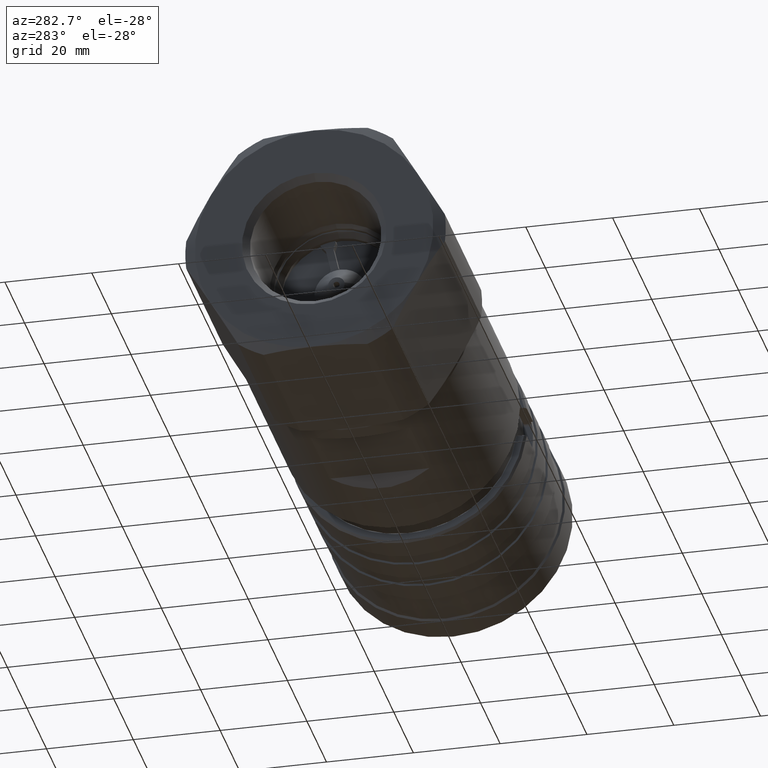
[diagram: clean part render]
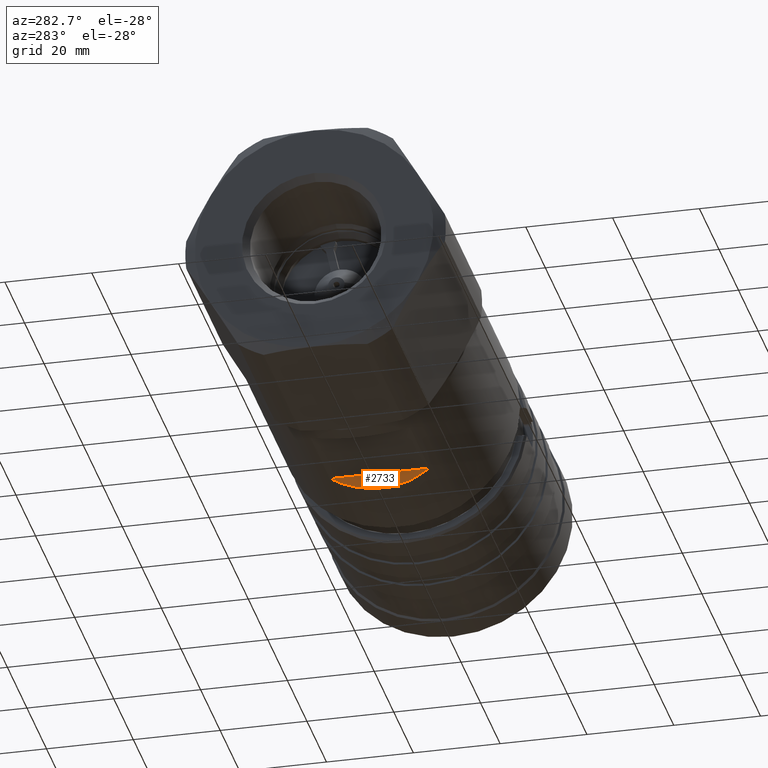
[diagram: same view with one face highlighted and labeled with its STEP entity id]
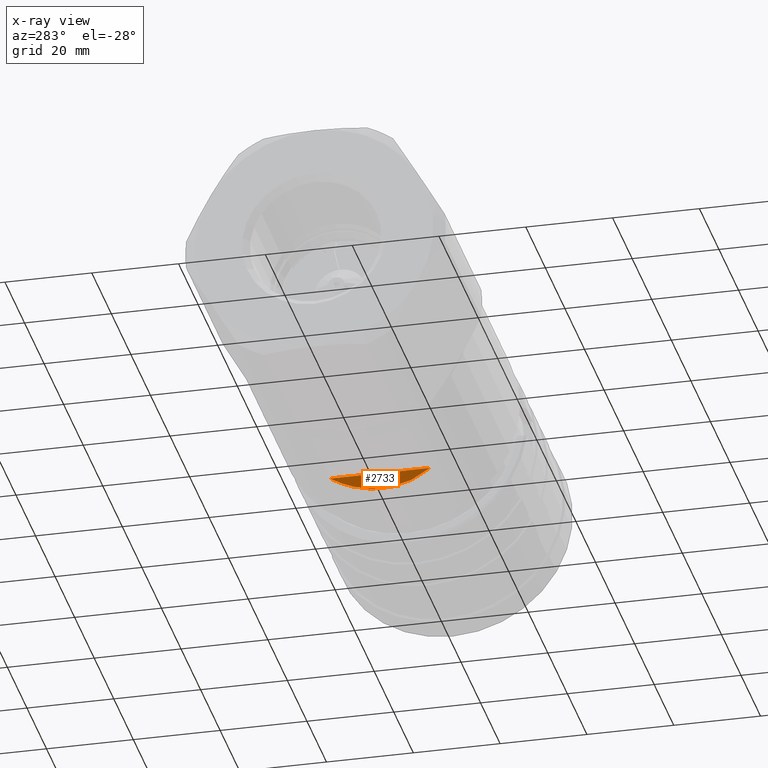
[diagram: x-ray of the same camera — body ghosted, the highlighted face saturated]
A machine part, auxiliary view. The second image highlights one B-rep face of the part: STEP entity #2733.
The next image is the same camera in x-ray: the body ghosted, the highlighted face saturated — about 0% of this face is hidden behind the body in this view.
In plain terms, the highlighted planar face has unit normal (0.7071, -0, 0.7071).
Its self-contained STEP definition (entity closure, byte-faithful):
#186 =( BOUNDED_CURVE ( )  B_SPLINE_CURVE ( 3, ( #2356, #1935, #1920, #2441 ),
 .UNSPECIFIED., .F., .T. ) 
 B_SPLINE_CURVE_WITH_KNOTS ( ( 4, 4 ),
 ( 2.711892987438370400, 3.571292319741215400 ),
 .UNSPECIFIED. ) 
 CURVE ( )  GEOMETRIC_REPRESENTATION_ITEM ( )  RATIONAL_B_SPLINE_CURVE ( ( 1.000000000000000000, 0.9393939393939400000, 0.9393939393939400000, 1.000000000000000000 ) ) 
 REPRESENTATION_ITEM ( '' )  );
#232 = EDGE_LOOP ( 'NONE', ( #7558, #7557 ) ) ;
#879 = EDGE_CURVE ( 'NONE', #4459, #5103, #6019, .T. ) ;
#1353 = PLANE ( 'NONE',  #6603 ) ;
#1448 = DIRECTION ( 'NONE',  ( 0.7071067811865490200, -5.194844574168740800E-016, 0.7071067811865461300 ) ) ;
#1457 = DIRECTION ( 'NONE',  ( 0.7071067811865460200, -2.054659656801174700E-016, -0.7071067811865489100 ) ) ;
#1459 = CARTESIAN_POINT ( 'NONE',  ( -0.5500000000000540000, -27.50000000000000000, -27.50000000000000000 ) ) ;
#1541 = CARTESIAN_POINT ( 'NONE',  ( -3.050000000000035300, -27.50000000000000000, -25.00000000000000000 ) ) ;
#1920 = CARTESIAN_POINT ( 'NONE',  ( 0.3370967741933954500, 4.065188116493047200, -28.38709677419349800 ) ) ;
#1935 = CARTESIAN_POINT ( 'NONE',  ( 0.3370967741933892900, -4.065188116493085400, -28.38709677419349500 ) ) ;
#2197 = DIRECTION ( 'NONE',  ( 4.848730758686539600E-016, 1.000000000000000000, 4.996003610813200500E-016 ) ) ;
#2356 = CARTESIAN_POINT ( 'NONE',  ( -3.050000000000000300, -11.45643923738959900, -25.00000000000000000 ) ) ;
#2441 = CARTESIAN_POINT ( 'NONE',  ( -3.050000000000000300, 11.45643923738956000, -25.00000000000000000 ) ) ;
#2647 = CARTESIAN_POINT ( 'NONE',  ( -3.050000000000000300, 11.45643923738956000, -25.00000000000000000 ) ) ;
#2733 = ADVANCED_FACE ( 'NONE', ( #5666 ), #1353, .F. ) ;
#3324 = CARTESIAN_POINT ( 'NONE',  ( -3.050000000000000300, -11.45643923738959900, -25.00000000000000000 ) ) ;
#4016 = EDGE_CURVE ( 'NONE', #4459, #5103, #186, .T. ) ;
#4459 = VERTEX_POINT ( 'NONE', #3324 ) ;
#5103 = VERTEX_POINT ( 'NONE', #2647 ) ;
#5666 = FACE_OUTER_BOUND ( 'NONE', #232, .T. ) ;
#6017 = VECTOR ( 'NONE', #2197, 1000.000000000000000 ) ;
#6019 = LINE ( 'NONE', #1541, #6017 ) ;
#6603 = AXIS2_PLACEMENT_3D ( 'NONE', #1459, #1448, #1457 ) ;
#7557 = ORIENTED_EDGE ( 'NONE', *, *, #4016, .F. ) ;
#7558 = ORIENTED_EDGE ( 'NONE', *, *, #879, .T. ) ;